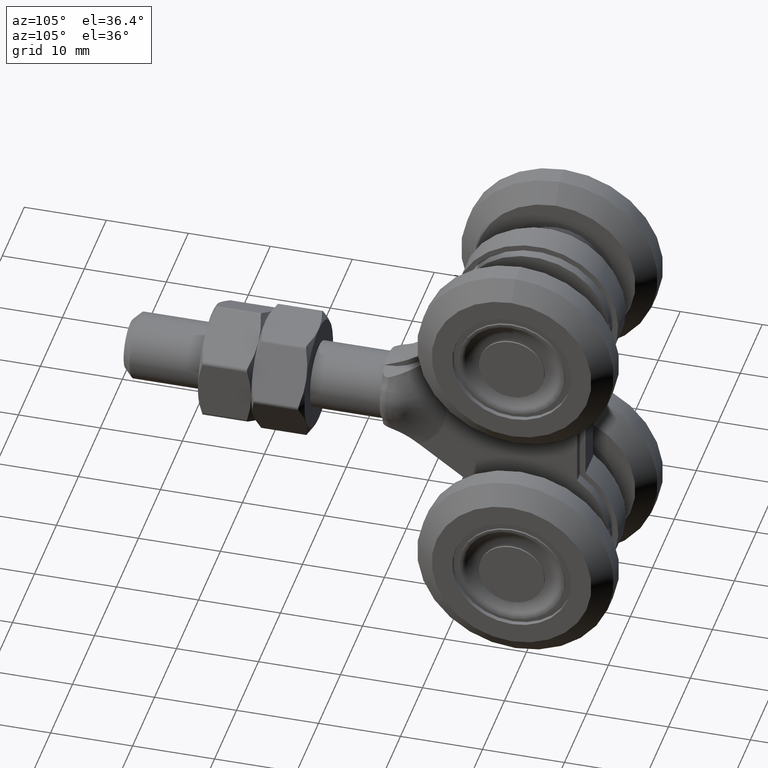
[diagram: clean part render]
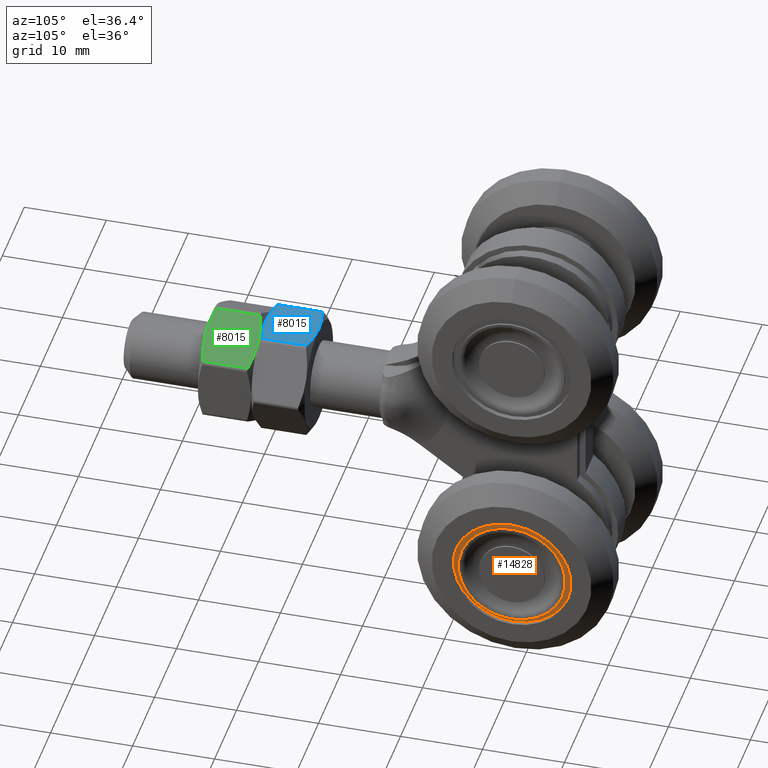
[diagram: same view with three faces highlighted in distinct colors, each labeled with its STEP entity id]
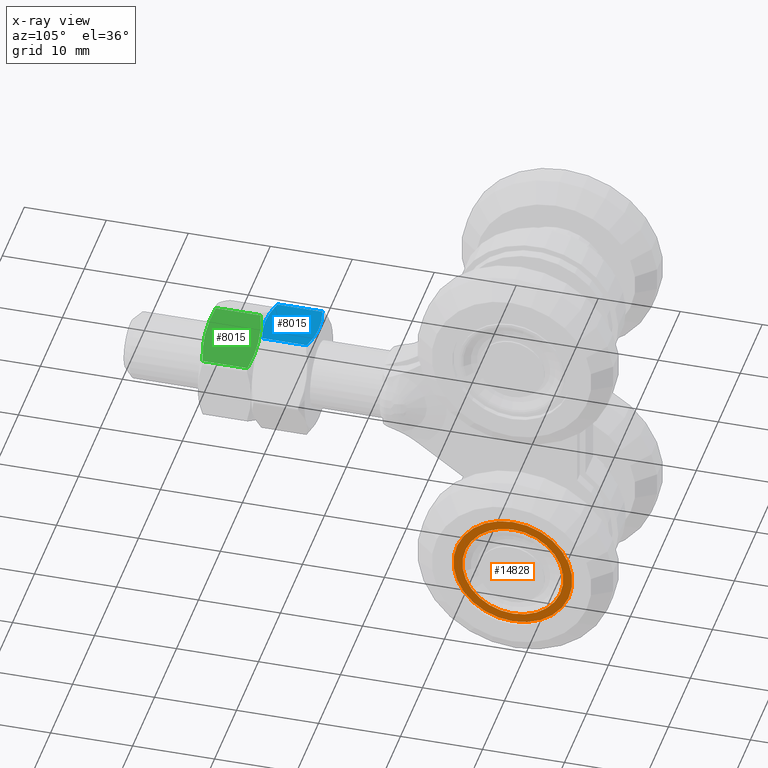
[diagram: x-ray of the same camera — body ghosted, the three highlighted faces saturated]
A machine part, auxiliary view with three faces highlighted in distinct colors.
The next image is the same camera in x-ray (body ghosted, the three faces saturated) — at least one of them is partly hidden behind the body in this view.
Their STEP definitions:

[orange] entity #14828 — the highlighted planar face has unit normal (-1, -0, -0).
#3722 = DIRECTION ( 'NONE',  ( -1.000000000000000000, -0.000000000000000000, -0.000000000000000000 ) ) ;
#4037 = AXIS2_PLACEMENT_3D ( 'NONE', #12510, #14882, #21404 ) ;
#4299 = EDGE_LOOP ( 'NONE', ( #17605 ) ) ;
#5342 = VERTEX_POINT ( 'NONE', #25044 ) ;
#9122 = ORIENTED_EDGE ( 'NONE', *, *, #15828, .T. ) ;
#9284 = AXIS2_PLACEMENT_3D ( 'NONE', #28244, #3722, #23915 ) ;
#10051 = DIRECTION ( 'NONE',  ( 1.000000000000000000, 0.000000000000000000, -0.000000000000000000 ) ) ;
#11716 = AXIS2_PLACEMENT_3D ( 'NONE', #11913, #10051, #28067 ) ;
#11913 = CARTESIAN_POINT ( 'NONE',  ( 12.39999999999999503, 18.99999999999999645, -15.00000000000000000 ) ) ;
#12510 = CARTESIAN_POINT ( 'NONE',  ( 12.39999999999999503, 18.99999999999999645, -15.00000000000000000 ) ) ;
#12742 = EDGE_LOOP ( 'NONE', ( #9122 ) ) ;
#14828 = ADVANCED_FACE ( 'NONE', ( #27972, #18848 ), #24111, .F. ) ;
#14882 = DIRECTION ( 'NONE',  ( 1.000000000000000000, 0.000000000000000000, -0.000000000000000000 ) ) ;
#15794 = CARTESIAN_POINT ( 'NONE',  ( 12.39999999999999503, 18.99999999999999645, -21.14999999999999858 ) ) ;
#15828 = EDGE_CURVE ( 'NONE', #5342, #5342, #21282, .T. ) ;
#16581 = VERTEX_POINT ( 'NONE', #15794 ) ;
#17605 = ORIENTED_EDGE ( 'NONE', *, *, #21692, .F. ) ;
#18848 = FACE_BOUND ( 'NONE', #4299, .T. ) ;
#21282 = CIRCLE ( 'NONE', #4037, 7.249999999999999112 ) ;
#21404 = DIRECTION ( 'NONE',  ( 0.000000000000000000, 0.000000000000000000, -1.000000000000000000 ) ) ;
#21692 = EDGE_CURVE ( 'NONE', #16581, #16581, #23226, .T. ) ;
#23226 = CIRCLE ( 'NONE', #11716, 6.149999999999999467 ) ;
#23915 = DIRECTION ( 'NONE',  ( 0.000000000000000000, 0.000000000000000000, -1.000000000000000000 ) ) ;
#24111 = PLANE ( 'NONE',  #9284 ) ;
#25044 = CARTESIAN_POINT ( 'NONE',  ( 12.39999999999999503, 18.99999999999999645, -22.25000000000000000 ) ) ;
#27972 = FACE_OUTER_BOUND ( 'NONE', #12742, .T. ) ;
#28067 = DIRECTION ( 'NONE',  ( 0.000000000000000000, 0.000000000000000000, -1.000000000000000000 ) ) ;
#28244 = CARTESIAN_POINT ( 'NONE',  ( 12.39999999999999503, 26.24999999999999645, -15.00000000000000000 ) ) ;

[blue] entity #8015 — the highlighted planar face has unit normal (-0, 0, -1).
#638 = ORIENTED_EDGE ( 'NONE', *, *, #13051, .T. ) ;
#948 = B_SPLINE_CURVE_WITH_KNOTS ( 'NONE', 3,
 ( #10629, #26386, #26679, #12881, #13080, #21977 ),
 .UNSPECIFIED., .F., .F.,
 ( 4, 2, 4 ),
 ( 0.01049192373168744002, 0.01224101292694981108, 0.01399010212221218040 ),
 .UNSPECIFIED. ) ;
#1786 = CARTESIAN_POINT ( 'NONE',  ( -1.165154001193353217, -3.203824240387213251, 6.499999999999996447 ) ) ;
#2109 = CARTESIAN_POINT ( 'NONE',  ( 3.464101615137754830, 2.750326475674884197, 6.499999999999996447 ) ) ;
#2296 = CARTESIAN_POINT ( 'NONE',  ( 0.5843306388857971712, 3.250000000000000888, 6.499999999999997335 ) ) ;
#2769 = CARTESIAN_POINT ( 'NONE',  ( 7.511572993685793184E-16, 3.250000000000000000, 6.499999999999998224 ) ) ;
#2876 = ORIENTED_EDGE ( 'NONE', *, *, #12297, .T. ) ;
#3099 = DIRECTION ( 'NONE',  ( -1.155626614413199577E-16, 0.000000000000000000, -1.000000000000000000 ) ) ;
#4419 = CARTESIAN_POINT ( 'NONE',  ( -3.464101615138761581, -2.750326475674610194, 6.499999999999997335 ) ) ;
#5148 = FACE_OUTER_BOUND ( 'NONE', #28277, .T. ) ;
#5601 = DIRECTION ( 'NONE',  ( -1.000000000000000000, 0.000000000000000000, 1.155626614413199577E-16 ) ) ;
#6643 = ORIENTED_EDGE ( 'NONE', *, *, #21519, .T. ) ;
#7330 = VECTOR ( 'NONE', #8778, 1000.000000000000000 ) ;
#7367 = EDGE_CURVE ( 'NONE', #18618, #27437, #13604, .T. ) ;
#7550 = CARTESIAN_POINT ( 'NONE',  ( -3.752776749732568362, 3.250000000000000000, 6.499999999999997335 ) ) ;
#7720 = B_SPLINE_CURVE_WITH_KNOTS ( 'NONE', 3,
 ( #23096, #18862, #12611, #23559, #21415, #28375 ),
 .UNSPECIFIED., .F., .F.,
 ( 4, 2, 4 ),
 ( 0.006539903902670018282, 0.008284481405013758432, 0.01002905890735750032 ),
 .UNSPECIFIED. ) ;
#8015 = ADVANCED_FACE ( 'NONE', ( #5148 ), #14739, .F. ) ;
#8393 = CARTESIAN_POINT ( 'NONE',  ( -3.464101615137755275, 3.250000000000000000, 6.499999999999997335 ) ) ;
#8418 = ORIENTED_EDGE ( 'NONE', *, *, #7367, .T. ) ;
#8778 = DIRECTION ( 'NONE',  ( 0.000000000000000000, -1.000000000000000000, 0.000000000000000000 ) ) ;
#9472 = VERTEX_POINT ( 'NONE', #2769 ) ;
#10508 = LINE ( 'NONE', #8393, #7330 ) ;
#10629 = CARTESIAN_POINT ( 'NONE',  ( 7.511572993685793184E-16, -3.250000000000000000, 6.499999999999998224 ) ) ;
#10702 = CARTESIAN_POINT ( 'NONE',  ( -3.464101615138761581, 2.750326475674610194, 6.499999999999997335 ) ) ;
#11376 = CARTESIAN_POINT ( 'NONE',  ( 2.902884495863544689, 2.902718077694773857, 6.499999999999995559 ) ) ;
#11876 = CARTESIAN_POINT ( 'NONE',  ( 3.464101615137754830, 2.750326475674884197, 6.499999999999996447 ) ) ;
#12180 = VECTOR ( 'NONE', #25226, 1000.000000000000000 ) ;
#12297 = EDGE_CURVE ( 'NONE', #9472, #19766, #7720, .T. ) ;
#12611 = CARTESIAN_POINT ( 'NONE',  ( -1.165154001193353217, 3.203824240387214140, 6.499999999999996447 ) ) ;
#12881 = CARTESIAN_POINT ( 'NONE',  ( 2.334407984255284507, -3.028397720916410574, 6.499999999999996447 ) ) ;
#13051 = EDGE_CURVE ( 'NONE', #27632, #14284, #25853, .T. ) ;
#13080 = CARTESIAN_POINT ( 'NONE',  ( 2.902884495863544689, -2.902718077694775189, 6.499999999999997335 ) ) ;
#13604 = LINE ( 'NONE', #27201, #12180 ) ;
#14115 = CARTESIAN_POINT ( 'NONE',  ( 3.464101615137754830, -2.750326475674884197, 6.499999999999996447 ) ) ;
#14284 = VERTEX_POINT ( 'NONE', #26722 ) ;
#14509 = CARTESIAN_POINT ( 'NONE',  ( -2.898327042775231899, -2.903955597993848947, 6.499999999999996447 ) ) ;
#14512 = AXIS2_PLACEMENT_3D ( 'NONE', #7550, #3099, #5601 ) ;
#14739 = PLANE ( 'NONE',  #14512 ) ;
#15631 = CARTESIAN_POINT ( 'NONE',  ( 1.176513056899266330, 3.202698315007801444, 6.499999999999996447 ) ) ;
#18618 = VERTEX_POINT ( 'NONE', #14115 ) ;
#18862 = CARTESIAN_POINT ( 'NONE',  ( -0.5843172097437293599, 3.250000000000000888, 6.499999999999995559 ) ) ;
#19436 = EDGE_CURVE ( 'NONE', #14284, #18618, #948, .T. ) ;
#19766 = VERTEX_POINT ( 'NONE', #10702 ) ;
#19893 = EDGE_CURVE ( 'NONE', #27437, #9472, #27970, .T. ) ;
#21246 = CARTESIAN_POINT ( 'NONE',  ( -0.5843172097437294710, -3.250000000000000888, 6.499999999999997335 ) ) ;
#21415 = CARTESIAN_POINT ( 'NONE',  ( -2.898327042775231455, 2.903955597993849391, 6.499999999999998224 ) ) ;
#21519 = EDGE_CURVE ( 'NONE', #19766, #27632, #10508, .T. ) ;
#21977 = CARTESIAN_POINT ( 'NONE',  ( 3.464101615137754830, -2.750326475674884197, 6.499999999999996447 ) ) ;
#22525 = CARTESIAN_POINT ( 'NONE',  ( 2.334407984255282731, 3.028397720916410574, 6.499999999999997335 ) ) ;
#22741 = ORIENTED_EDGE ( 'NONE', *, *, #19893, .T. ) ;
#23096 = CARTESIAN_POINT ( 'NONE',  ( 7.511572993685793184E-16, 3.250000000000000000, 6.499999999999998224 ) ) ;
#23559 = CARTESIAN_POINT ( 'NONE',  ( -2.320763831739690364, 3.031023089152299566, 6.499999999999995559 ) ) ;
#24169 = CARTESIAN_POINT ( 'NONE',  ( -3.464101615138761581, -2.750326475674610194, 6.499999999999997335 ) ) ;
#25226 = DIRECTION ( 'NONE',  ( -0.000000000000000000, 1.000000000000000000, -0.000000000000000000 ) ) ;
#25853 = B_SPLINE_CURVE_WITH_KNOTS ( 'NONE', 3,
 ( #24169, #14509, #28799, #1786, #21246, #26442 ),
 .UNSPECIFIED., .F., .F.,
 ( 4, 2, 4 ),
 ( 0.006993825736629676916, 0.008742874734158558037, 0.01049192373168744002 ),
 .UNSPECIFIED. ) ;
#26386 = CARTESIAN_POINT ( 'NONE',  ( 0.5843306388857970601, -3.250000000000000444, 6.499999999999995559 ) ) ;
#26442 = CARTESIAN_POINT ( 'NONE',  ( 7.511572993685793184E-16, -3.250000000000000000, 6.499999999999998224 ) ) ;
#26679 = CARTESIAN_POINT ( 'NONE',  ( 1.176513056899266774, -3.202698315007801444, 6.499999999999997335 ) ) ;
#26722 = CARTESIAN_POINT ( 'NONE',  ( 7.511572993685793184E-16, -3.250000000000000000, 6.499999999999998224 ) ) ;
#27201 = CARTESIAN_POINT ( 'NONE',  ( 3.464101615137754386, 3.250000000000000000, 6.499999999999996447 ) ) ;
#27234 = CARTESIAN_POINT ( 'NONE',  ( 7.511572993685793184E-16, 3.250000000000000000, 6.499999999999998224 ) ) ;
#27437 = VERTEX_POINT ( 'NONE', #11876 ) ;
#27632 = VERTEX_POINT ( 'NONE', #4419 ) ;
#27970 = B_SPLINE_CURVE_WITH_KNOTS ( 'NONE', 3,
 ( #2109, #11376, #22525, #15631, #2296, #27234 ),
 .UNSPECIFIED., .F., .F.,
 ( 4, 2, 4 ),
 ( 0.003050668708048934457, 0.004795286305359476586, 0.006539903902670018282 ),
 .UNSPECIFIED. ) ;
#28277 = EDGE_LOOP ( 'NONE', ( #28714, #8418, #22741, #2876, #6643, #638 ) ) ;
#28375 = CARTESIAN_POINT ( 'NONE',  ( -3.464101615138761581, 2.750326475674610194, 6.499999999999997335 ) ) ;
#28714 = ORIENTED_EDGE ( 'NONE', *, *, #19436, .T. ) ;
#28799 = CARTESIAN_POINT ( 'NONE',  ( -2.320763831739691252, -3.031023089152300454, 6.499999999999998224 ) ) ;

[green] entity #8015 — the highlighted planar face has unit normal (-0.5, 0, -0.866).
#638 = ORIENTED_EDGE ( 'NONE', *, *, #13051, .T. ) ;
#948 = B_SPLINE_CURVE_WITH_KNOTS ( 'NONE', 3,
 ( #10629, #26386, #26679, #12881, #13080, #21977 ),
 .UNSPECIFIED., .F., .F.,
 ( 4, 2, 4 ),
 ( 0.01049192373168744002, 0.01224101292694981108, 0.01399010212221218040 ),
 .UNSPECIFIED. ) ;
#1786 = CARTESIAN_POINT ( 'NONE',  ( -1.165154001193353217, -3.203824240387213251, 6.499999999999996447 ) ) ;
#2109 = CARTESIAN_POINT ( 'NONE',  ( 3.464101615137754830, 2.750326475674884197, 6.499999999999996447 ) ) ;
#2296 = CARTESIAN_POINT ( 'NONE',  ( 0.5843306388857971712, 3.250000000000000888, 6.499999999999997335 ) ) ;
#2769 = CARTESIAN_POINT ( 'NONE',  ( 7.511572993685793184E-16, 3.250000000000000000, 6.499999999999998224 ) ) ;
#2876 = ORIENTED_EDGE ( 'NONE', *, *, #12297, .T. ) ;
#3099 = DIRECTION ( 'NONE',  ( -1.155626614413199577E-16, 0.000000000000000000, -1.000000000000000000 ) ) ;
#4419 = CARTESIAN_POINT ( 'NONE',  ( -3.464101615138761581, -2.750326475674610194, 6.499999999999997335 ) ) ;
#5148 = FACE_OUTER_BOUND ( 'NONE', #28277, .T. ) ;
#5601 = DIRECTION ( 'NONE',  ( -1.000000000000000000, 0.000000000000000000, 1.155626614413199577E-16 ) ) ;
#6643 = ORIENTED_EDGE ( 'NONE', *, *, #21519, .T. ) ;
#7330 = VECTOR ( 'NONE', #8778, 1000.000000000000000 ) ;
#7367 = EDGE_CURVE ( 'NONE', #18618, #27437, #13604, .T. ) ;
#7550 = CARTESIAN_POINT ( 'NONE',  ( -3.752776749732568362, 3.250000000000000000, 6.499999999999997335 ) ) ;
#7720 = B_SPLINE_CURVE_WITH_KNOTS ( 'NONE', 3,
 ( #23096, #18862, #12611, #23559, #21415, #28375 ),
 .UNSPECIFIED., .F., .F.,
 ( 4, 2, 4 ),
 ( 0.006539903902670018282, 0.008284481405013758432, 0.01002905890735750032 ),
 .UNSPECIFIED. ) ;
#8015 = ADVANCED_FACE ( 'NONE', ( #5148 ), #14739, .F. ) ;
#8393 = CARTESIAN_POINT ( 'NONE',  ( -3.464101615137755275, 3.250000000000000000, 6.499999999999997335 ) ) ;
#8418 = ORIENTED_EDGE ( 'NONE', *, *, #7367, .T. ) ;
#8778 = DIRECTION ( 'NONE',  ( 0.000000000000000000, -1.000000000000000000, 0.000000000000000000 ) ) ;
#9472 = VERTEX_POINT ( 'NONE', #2769 ) ;
#10508 = LINE ( 'NONE', #8393, #7330 ) ;
#10629 = CARTESIAN_POINT ( 'NONE',  ( 7.511572993685793184E-16, -3.250000000000000000, 6.499999999999998224 ) ) ;
#10702 = CARTESIAN_POINT ( 'NONE',  ( -3.464101615138761581, 2.750326475674610194, 6.499999999999997335 ) ) ;
#11376 = CARTESIAN_POINT ( 'NONE',  ( 2.902884495863544689, 2.902718077694773857, 6.499999999999995559 ) ) ;
#11876 = CARTESIAN_POINT ( 'NONE',  ( 3.464101615137754830, 2.750326475674884197, 6.499999999999996447 ) ) ;
#12180 = VECTOR ( 'NONE', #25226, 1000.000000000000000 ) ;
#12297 = EDGE_CURVE ( 'NONE', #9472, #19766, #7720, .T. ) ;
#12611 = CARTESIAN_POINT ( 'NONE',  ( -1.165154001193353217, 3.203824240387214140, 6.499999999999996447 ) ) ;
#12881 = CARTESIAN_POINT ( 'NONE',  ( 2.334407984255284507, -3.028397720916410574, 6.499999999999996447 ) ) ;
#13051 = EDGE_CURVE ( 'NONE', #27632, #14284, #25853, .T. ) ;
#13080 = CARTESIAN_POINT ( 'NONE',  ( 2.902884495863544689, -2.902718077694775189, 6.499999999999997335 ) ) ;
#13604 = LINE ( 'NONE', #27201, #12180 ) ;
#14115 = CARTESIAN_POINT ( 'NONE',  ( 3.464101615137754830, -2.750326475674884197, 6.499999999999996447 ) ) ;
#14284 = VERTEX_POINT ( 'NONE', #26722 ) ;
#14509 = CARTESIAN_POINT ( 'NONE',  ( -2.898327042775231899, -2.903955597993848947, 6.499999999999996447 ) ) ;
#14512 = AXIS2_PLACEMENT_3D ( 'NONE', #7550, #3099, #5601 ) ;
#14739 = PLANE ( 'NONE',  #14512 ) ;
#15631 = CARTESIAN_POINT ( 'NONE',  ( 1.176513056899266330, 3.202698315007801444, 6.499999999999996447 ) ) ;
#18618 = VERTEX_POINT ( 'NONE', #14115 ) ;
#18862 = CARTESIAN_POINT ( 'NONE',  ( -0.5843172097437293599, 3.250000000000000888, 6.499999999999995559 ) ) ;
#19436 = EDGE_CURVE ( 'NONE', #14284, #18618, #948, .T. ) ;
#19766 = VERTEX_POINT ( 'NONE', #10702 ) ;
#19893 = EDGE_CURVE ( 'NONE', #27437, #9472, #27970, .T. ) ;
#21246 = CARTESIAN_POINT ( 'NONE',  ( -0.5843172097437294710, -3.250000000000000888, 6.499999999999997335 ) ) ;
#21415 = CARTESIAN_POINT ( 'NONE',  ( -2.898327042775231455, 2.903955597993849391, 6.499999999999998224 ) ) ;
#21519 = EDGE_CURVE ( 'NONE', #19766, #27632, #10508, .T. ) ;
#21977 = CARTESIAN_POINT ( 'NONE',  ( 3.464101615137754830, -2.750326475674884197, 6.499999999999996447 ) ) ;
#22525 = CARTESIAN_POINT ( 'NONE',  ( 2.334407984255282731, 3.028397720916410574, 6.499999999999997335 ) ) ;
#22741 = ORIENTED_EDGE ( 'NONE', *, *, #19893, .T. ) ;
#23096 = CARTESIAN_POINT ( 'NONE',  ( 7.511572993685793184E-16, 3.250000000000000000, 6.499999999999998224 ) ) ;
#23559 = CARTESIAN_POINT ( 'NONE',  ( -2.320763831739690364, 3.031023089152299566, 6.499999999999995559 ) ) ;
#24169 = CARTESIAN_POINT ( 'NONE',  ( -3.464101615138761581, -2.750326475674610194, 6.499999999999997335 ) ) ;
#25226 = DIRECTION ( 'NONE',  ( -0.000000000000000000, 1.000000000000000000, -0.000000000000000000 ) ) ;
#25853 = B_SPLINE_CURVE_WITH_KNOTS ( 'NONE', 3,
 ( #24169, #14509, #28799, #1786, #21246, #26442 ),
 .UNSPECIFIED., .F., .F.,
 ( 4, 2, 4 ),
 ( 0.006993825736629676916, 0.008742874734158558037, 0.01049192373168744002 ),
 .UNSPECIFIED. ) ;
#26386 = CARTESIAN_POINT ( 'NONE',  ( 0.5843306388857970601, -3.250000000000000444, 6.499999999999995559 ) ) ;
#26442 = CARTESIAN_POINT ( 'NONE',  ( 7.511572993685793184E-16, -3.250000000000000000, 6.499999999999998224 ) ) ;
#26679 = CARTESIAN_POINT ( 'NONE',  ( 1.176513056899266774, -3.202698315007801444, 6.499999999999997335 ) ) ;
#26722 = CARTESIAN_POINT ( 'NONE',  ( 7.511572993685793184E-16, -3.250000000000000000, 6.499999999999998224 ) ) ;
#27201 = CARTESIAN_POINT ( 'NONE',  ( 3.464101615137754386, 3.250000000000000000, 6.499999999999996447 ) ) ;
#27234 = CARTESIAN_POINT ( 'NONE',  ( 7.511572993685793184E-16, 3.250000000000000000, 6.499999999999998224 ) ) ;
#27437 = VERTEX_POINT ( 'NONE', #11876 ) ;
#27632 = VERTEX_POINT ( 'NONE', #4419 ) ;
#27970 = B_SPLINE_CURVE_WITH_KNOTS ( 'NONE', 3,
 ( #2109, #11376, #22525, #15631, #2296, #27234 ),
 .UNSPECIFIED., .F., .F.,
 ( 4, 2, 4 ),
 ( 0.003050668708048934457, 0.004795286305359476586, 0.006539903902670018282 ),
 .UNSPECIFIED. ) ;
#28277 = EDGE_LOOP ( 'NONE', ( #28714, #8418, #22741, #2876, #6643, #638 ) ) ;
#28375 = CARTESIAN_POINT ( 'NONE',  ( -3.464101615138761581, 2.750326475674610194, 6.499999999999997335 ) ) ;
#28714 = ORIENTED_EDGE ( 'NONE', *, *, #19436, .T. ) ;
#28799 = CARTESIAN_POINT ( 'NONE',  ( -2.320763831739691252, -3.031023089152300454, 6.499999999999998224 ) ) ;